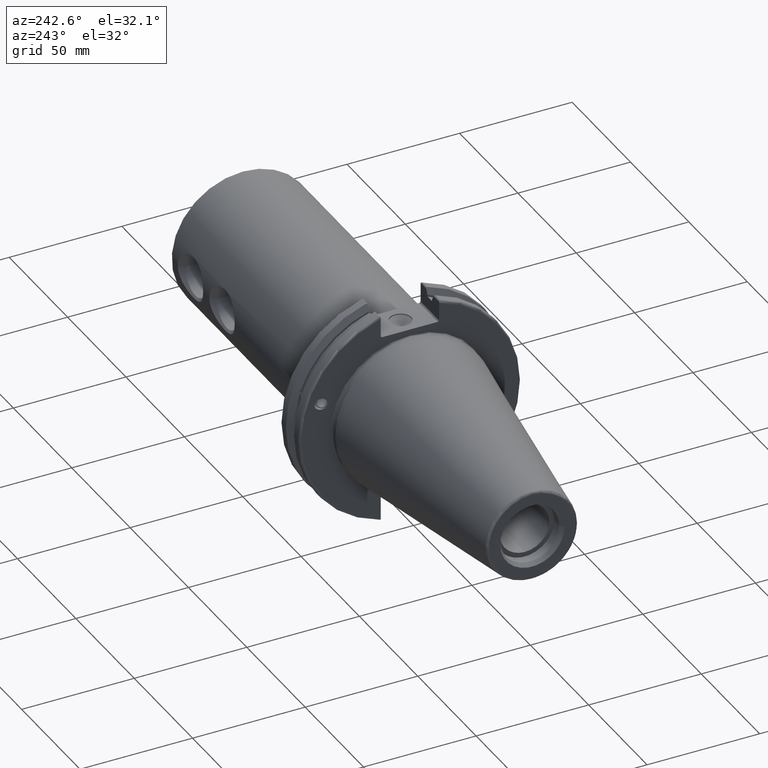
[diagram: clean part render]
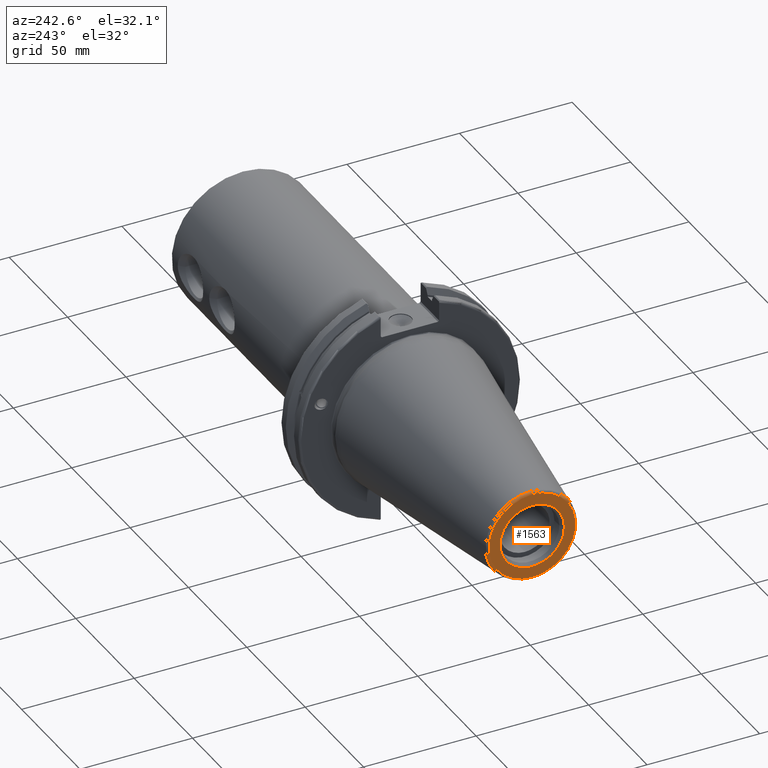
[diagram: same view with one face highlighted and labeled with its STEP entity id]
A machine part, auxiliary view. The second image highlights one B-rep face of the part: STEP entity #1563.
In plain terms, the highlighted planar face has unit normal (-1, 0, 0).
Its self-contained STEP definition (entity closure, byte-faithful):
#53=PLANE('',#1739);
#91=FACE_BOUND('',#297,.T.);
#188=FACE_OUTER_BOUND('',#296,.T.);
#296=EDGE_LOOP('',(#1360));
#297=EDGE_LOOP('',(#1361));
#392=CIRCLE('',#1738,19.2435889303637);
#393=CIRCLE('',#1740,14.2875);
#784=VERTEX_POINT('',#3219);
#785=VERTEX_POINT('',#3223);
#994=EDGE_CURVE('',#784,#784,#392,.T.);
#995=EDGE_CURVE('',#785,#785,#393,.T.);
#1360=ORIENTED_EDGE('',*,*,#994,.F.);
#1361=ORIENTED_EDGE('',*,*,#995,.T.);
#1563=ADVANCED_FACE('',(#188,#91),#53,.T.);
#1738=AXIS2_PLACEMENT_3D('',#3221,#2103,#2104);
#1739=AXIS2_PLACEMENT_3D('',#3222,#2105,#2106);
#1740=AXIS2_PLACEMENT_3D('',#3224,#2107,#2108);
#2103=DIRECTION('center_axis',(1.,0.,0.));
#2104=DIRECTION('ref_axis',(0.,-1.,1.83697019872103E-16));
#2105=DIRECTION('center_axis',(-1.,0.,0.));
#2106=DIRECTION('ref_axis',(0.,0.,1.));
#2107=DIRECTION('center_axis',(1.,0.,0.));
#2108=DIRECTION('ref_axis',(0.,0.,-1.));
#3219=CARTESIAN_POINT('',(-101.6,-2.35665995876774E-15,19.2435889303637));
#3221=CARTESIAN_POINT('Origin',(-101.6,0.,0.));
#3222=CARTESIAN_POINT('Origin',(-101.6,20.1083333333333,0.));
#3223=CARTESIAN_POINT('',(-101.6,-14.2875,-1.74971411428178E-15));
#3224=CARTESIAN_POINT('Origin',(-101.6,0.,0.));